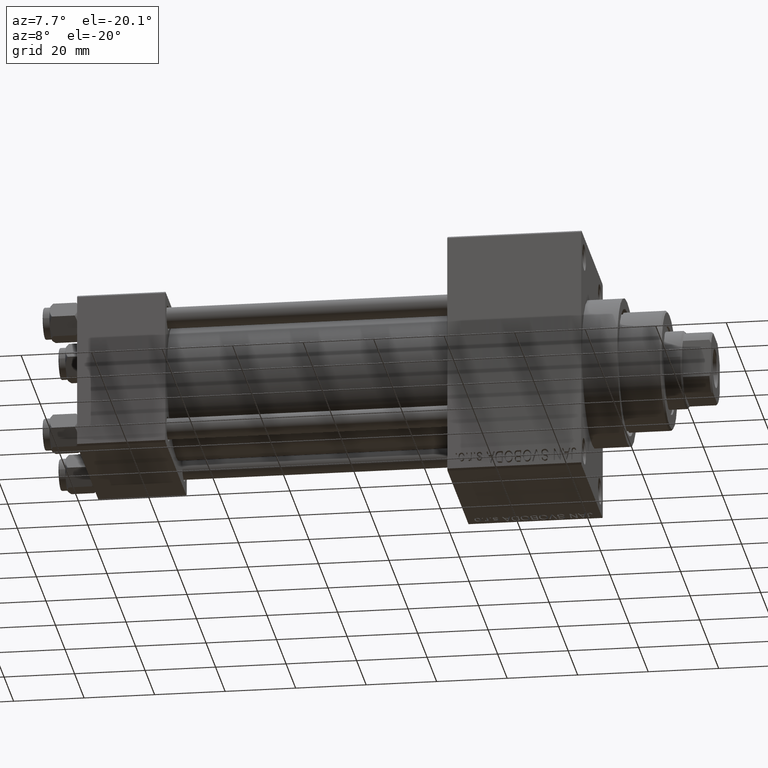
[diagram: clean part render]
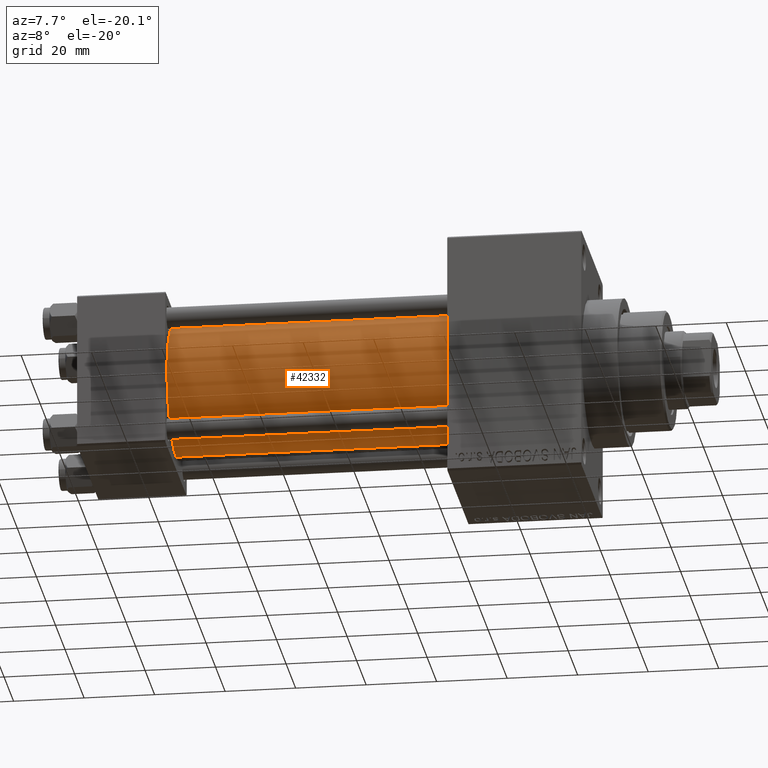
[diagram: same view with one face highlighted and labeled with its STEP entity id]
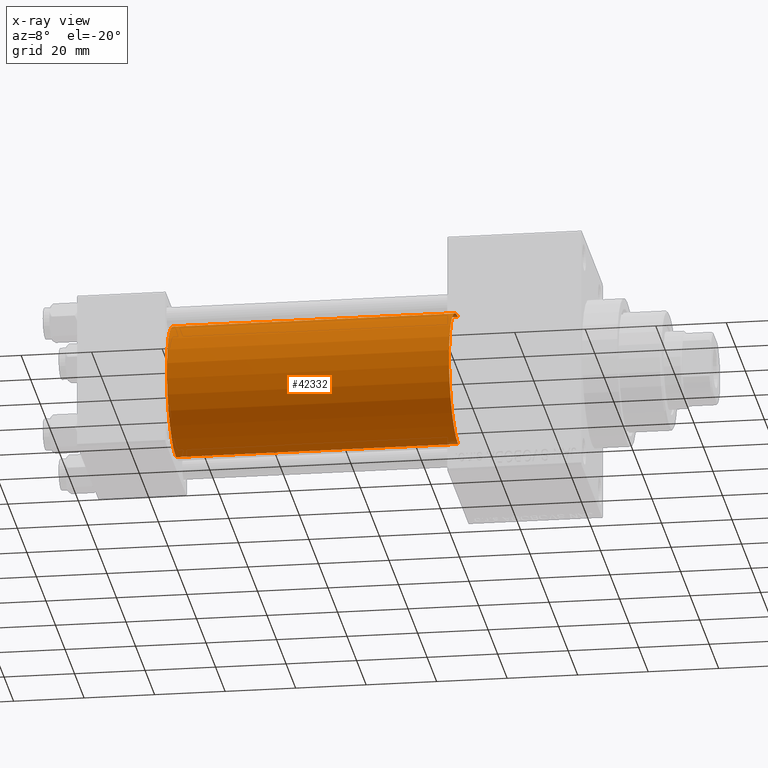
[diagram: x-ray of the same camera — body ghosted, the highlighted face saturated]
A machine part, auxiliary view. The second image highlights one B-rep face of the part: STEP entity #42332.
The next image is the same camera in x-ray: the body ghosted, the highlighted face saturated — about 0% of this face is hidden behind the body in this view.
In plain terms, the highlighted cylindrical surface (partial cylindrical patch) has radius 19 mm, axis along (-1, -0, -0).
Its self-contained STEP definition (entity closure, byte-faithful):
#79 = LINE ( 'NONE', #37292, #28511 ) ;
#571 = DIRECTION ( 'NONE',  ( 1.000000000000000000, -0.000000000000000000, 0.000000000000000000 ) ) ;
#592 = EDGE_CURVE ( 'NONE', #4065, #27732, #47087, .T. ) ;
#654 = ORIENTED_EDGE ( 'NONE', *, *, #5831, .F. ) ;
#3225 = CARTESIAN_POINT ( 'NONE',  ( 24.99999999999999289, -2.602085213965210642E-15, 0.000000000000000000 ) ) ;
#4065 = VERTEX_POINT ( 'NONE', #24546 ) ;
#4492 = CARTESIAN_POINT ( 'NONE',  ( 105.0000000000000142, -2.602085213965210642E-15, 0.000000000000000000 ) ) ;
#5831 = EDGE_CURVE ( 'NONE', #37147, #34562, #38003, .T. ) ;
#7742 = CARTESIAN_POINT ( 'NONE',  ( 105.0000000000000142, -2.602085213965210642E-15, 19.00000000000000000 ) ) ;
#7852 = EDGE_CURVE ( 'NONE', #37147, #4065, #39071, .T. ) ;
#13790 = DIRECTION ( 'NONE',  ( -1.000000000000000000, -0.000000000000000000, -0.000000000000000000 ) ) ;
#14253 = CARTESIAN_POINT ( 'NONE',  ( 105.0000000000000142, -2.602085213965210642E-15, 19.00000000000000000 ) ) ;
#14823 = AXIS2_PLACEMENT_3D ( 'NONE', #38285, #24222, #34242 ) ;
#15338 = DIRECTION ( 'NONE',  ( -1.000000000000000000, -0.000000000000000000, -0.000000000000000000 ) ) ;
#15424 = EDGE_LOOP ( 'NONE', ( #32647, #654, #34218, #37318 ) ) ;
#15449 = DIRECTION ( 'NONE',  ( 0.000000000000000000, 0.000000000000000000, -1.000000000000000000 ) ) ;
#20884 = CARTESIAN_POINT ( 'NONE',  ( 105.0000000000000142, -2.752562955852396712E-16, -19.00000000000000000 ) ) ;
#23751 = FACE_OUTER_BOUND ( 'NONE', #15424, .T. ) ;
#24222 = DIRECTION ( 'NONE',  ( -1.000000000000000000, -0.000000000000000000, -0.000000000000000000 ) ) ;
#24546 = CARTESIAN_POINT ( 'NONE',  ( 24.99999999999999289, -2.602085213965210642E-15, 19.00000000000000000 ) ) ;
#25907 = EDGE_CURVE ( 'NONE', #34562, #27732, #79, .T. ) ;
#27732 = VERTEX_POINT ( 'NONE', #31941 ) ;
#28511 = VECTOR ( 'NONE', #15338, 1000.000000000000000 ) ;
#31941 = CARTESIAN_POINT ( 'NONE',  ( 24.99999999999999289, -2.752562955852396712E-16, -19.00000000000000000 ) ) ;
#32647 = ORIENTED_EDGE ( 'NONE', *, *, #25907, .F. ) ;
#33262 = DIRECTION ( 'NONE',  ( 0.000000000000000000, 0.000000000000000000, 1.000000000000000000 ) ) ;
#34131 = AXIS2_PLACEMENT_3D ( 'NONE', #3225, #571, #33262 ) ;
#34218 = ORIENTED_EDGE ( 'NONE', *, *, #7852, .T. ) ;
#34242 = DIRECTION ( 'NONE',  ( 0.000000000000000000, 0.000000000000000000, 1.000000000000000000 ) ) ;
#34562 = VERTEX_POINT ( 'NONE', #20884 ) ;
#34956 = CYLINDRICAL_SURFACE ( 'NONE', #14823, 19.00000000000000000 ) ;
#34983 = AXIS2_PLACEMENT_3D ( 'NONE', #4492, #44084, #15449 ) ;
#37147 = VERTEX_POINT ( 'NONE', #7742 ) ;
#37292 = CARTESIAN_POINT ( 'NONE',  ( 105.0000000000000142, -2.752562955852396712E-16, -19.00000000000000000 ) ) ;
#37318 = ORIENTED_EDGE ( 'NONE', *, *, #592, .T. ) ;
#38003 = CIRCLE ( 'NONE', #34983, 19.00000000000000000 ) ;
#38285 = CARTESIAN_POINT ( 'NONE',  ( 105.0000000000000142, -2.602085213965210642E-15, 0.000000000000000000 ) ) ;
#39071 = LINE ( 'NONE', #14253, #39604 ) ;
#39604 = VECTOR ( 'NONE', #13790, 1000.000000000000000 ) ;
#42332 = ADVANCED_FACE ( 'NONE', ( #23751 ), #34956, .T. ) ;
#44084 = DIRECTION ( 'NONE',  ( 1.000000000000000000, 0.000000000000000000, 0.000000000000000000 ) ) ;
#47087 = CIRCLE ( 'NONE', #34131, 19.00000000000000000 ) ;